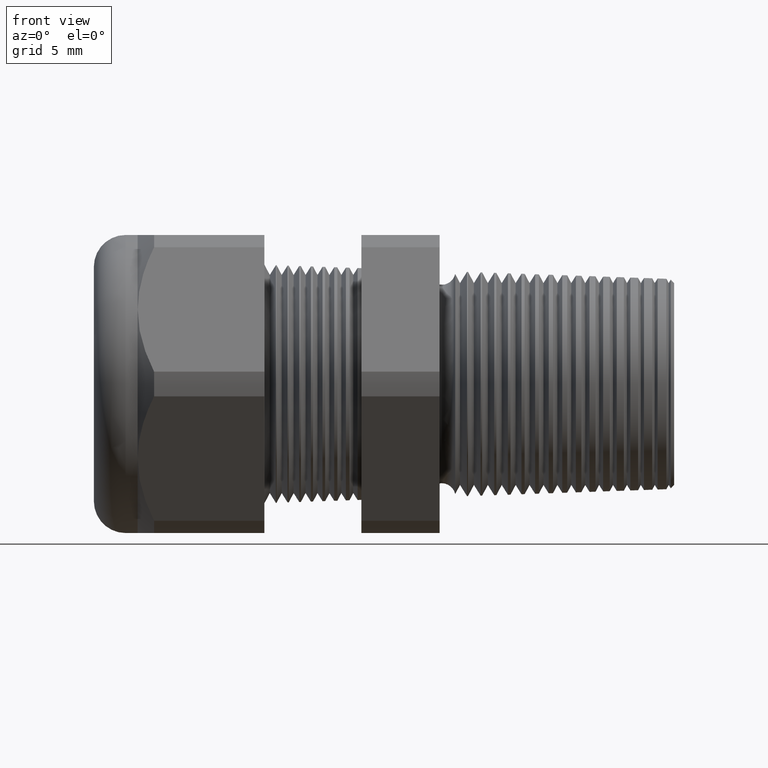
[diagram: clean part render]
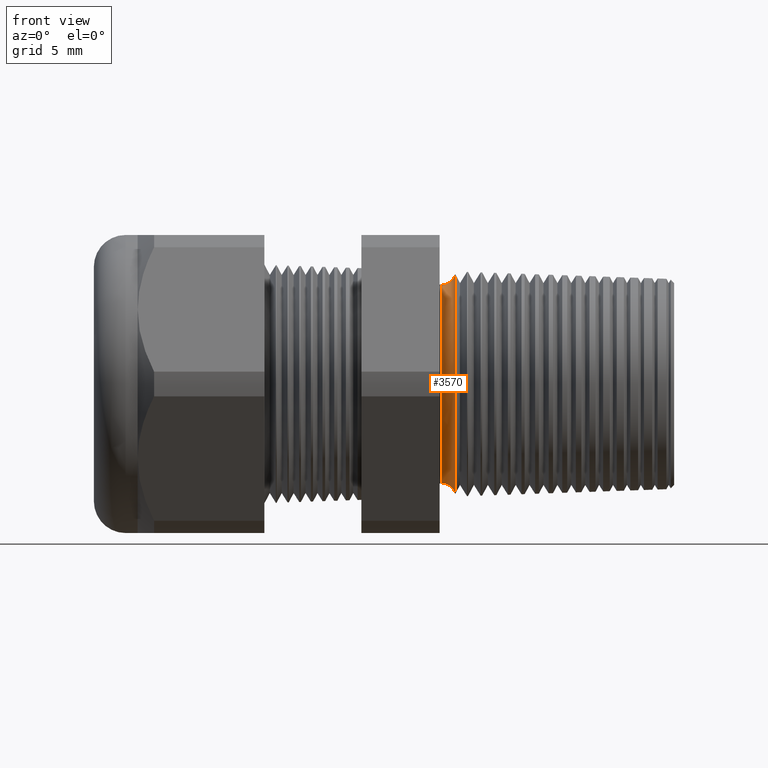
[diagram: same view with one face highlighted and labeled with its STEP entity id]
A machine part, front view. The second image highlights one B-rep face of the part: STEP entity #3570.
In plain terms, the highlighted toroidal blend (fillet) surface has major radius 7.229 mm and minor (blend) radius 0.889 mm.
Its self-contained STEP definition (entity closure, byte-faithful):
#411 = CARTESIAN_POINT ( 'NONE',  ( -0.2708719432804220800, 3.390322847858163700E-017, -0.2768408695648931800 ) ) ;
#412 = DIRECTION ( 'NONE',  ( 0.0000000000000000000, 0.0000000000000000000, -1.000000000000000000 ) ) ;
#413 = DIRECTION ( 'NONE',  ( 0.0000000000000000000, -1.000000000000000000, 0.0000000000000000000 ) ) ;
#414 = AXIS2_PLACEMENT_3D ( 'NONE', #420, #413, #412 ) ;
#415 = CIRCLE ( 'NONE', #414, 0.03499999999999996900 ) ;
#420 = CARTESIAN_POINT ( 'NONE',  ( -0.3049999999999999400, 0.0000000000000000000, -0.2846046150878539000 ) ) ;
#499 = CARTESIAN_POINT ( 'NONE',  ( -0.2708719432804220800, 0.0000000000000000000, 0.2768408695648931800 ) ) ;
#500 = DIRECTION ( 'NONE',  ( 0.0000000000000000000, 1.224646799147352700E-016, 1.000000000000000000 ) ) ;
#501 = DIRECTION ( 'NONE',  ( 0.0000000000000000000, 1.000000000000000000, -1.224646799147353200E-016 ) ) ;
#502 = CARTESIAN_POINT ( 'NONE',  ( -0.3049999999999999400, 3.485401308899047800E-017, 0.2846046150878539000 ) ) ;
#503 = AXIS2_PLACEMENT_3D ( 'NONE', #502, #501, #500 ) ;
#504 = CIRCLE ( 'NONE', #503, 0.03499999999999996900 ) ;
#505 = CARTESIAN_POINT ( 'NONE',  ( -0.3049999999999999400, 3.056774929197474500E-017, 0.2496046150878539200 ) ) ;
#511 = CARTESIAN_POINT ( 'NONE',  ( -0.3049999999999999400, 0.0000000000000000000, -0.2496046150878539200 ) ) ;
#536 = DIRECTION ( 'NONE',  ( 0.0000000000000000000, 0.0000000000000000000, -1.000000000000000000 ) ) ;
#537 = DIRECTION ( 'NONE',  ( 1.000000000000000000, 0.0000000000000000000, 0.0000000000000000000 ) ) ;
#538 = CARTESIAN_POINT ( 'NONE',  ( -0.3049999999999999400, 0.0000000000000000000, 0.0000000000000000000 ) ) ;
#539 = AXIS2_PLACEMENT_3D ( 'NONE', #538, #537, #536 ) ;
#540 = TOROIDAL_SURFACE ( 'NONE', #539, 0.2846046150878539000, 0.03499999999999996200 ) ;
#541 = FACE_OUTER_BOUND ( 'NONE', #3571, .T. ) ;
#704 = DIRECTION ( 'NONE',  ( 0.0000000000000000000, 0.0000000000000000000, 1.000000000000000000 ) ) ;
#705 = DIRECTION ( 'NONE',  ( 1.000000000000000000, 0.0000000000000000000, 0.0000000000000000000 ) ) ;
#706 = CARTESIAN_POINT ( 'NONE',  ( -0.2708719432804220800, 0.0000000000000000000, 0.0000000000000000000 ) ) ;
#707 = AXIS2_PLACEMENT_3D ( 'NONE', #706, #705, #704 ) ;
#708 = CIRCLE ( 'NONE', #707, 0.2768408695648932300 ) ;
#709 = DIRECTION ( 'NONE',  ( 0.0000000000000000000, 0.0000000000000000000, -1.000000000000000000 ) ) ;
#710 = DIRECTION ( 'NONE',  ( 1.000000000000000000, 0.0000000000000000000, 0.0000000000000000000 ) ) ;
#711 = CARTESIAN_POINT ( 'NONE',  ( -0.3049999999999999400, 0.0000000000000000000, 0.0000000000000000000 ) ) ;
#712 = AXIS2_PLACEMENT_3D ( 'NONE', #711, #710, #709 ) ;
#713 = CIRCLE ( 'NONE', #712, 0.2496046150878539200 ) ;
#3504 = EDGE_CURVE ( 'NONE', #3505, #3553, #415, .T. ) ;
#3505 = VERTEX_POINT ( 'NONE', #411 ) ;
#3553 = VERTEX_POINT ( 'NONE', #511 ) ;
#3556 = VERTEX_POINT ( 'NONE', #505 ) ;
#3558 = EDGE_CURVE ( 'NONE', #3559, #3556, #504, .T. ) ;
#3559 = VERTEX_POINT ( 'NONE', #499 ) ;
#3570 = ADVANCED_FACE ( 'NONE', ( #541 ), #540, .F. ) ;
#3571 = EDGE_LOOP ( 'NONE', ( #3645, #3657, #3656, #3647 ) ) ;
#3645 = ORIENTED_EDGE ( 'NONE', *, *, #3558, .T. ) ;
#3646 = EDGE_CURVE ( 'NONE', #3556, #3553, #713, .T. ) ;
#3647 = ORIENTED_EDGE ( 'NONE', *, *, #3648, .F. ) ;
#3648 = EDGE_CURVE ( 'NONE', #3559, #3505, #708, .T. ) ;
#3656 = ORIENTED_EDGE ( 'NONE', *, *, #3504, .F. ) ;
#3657 = ORIENTED_EDGE ( 'NONE', *, *, #3646, .T. ) ;